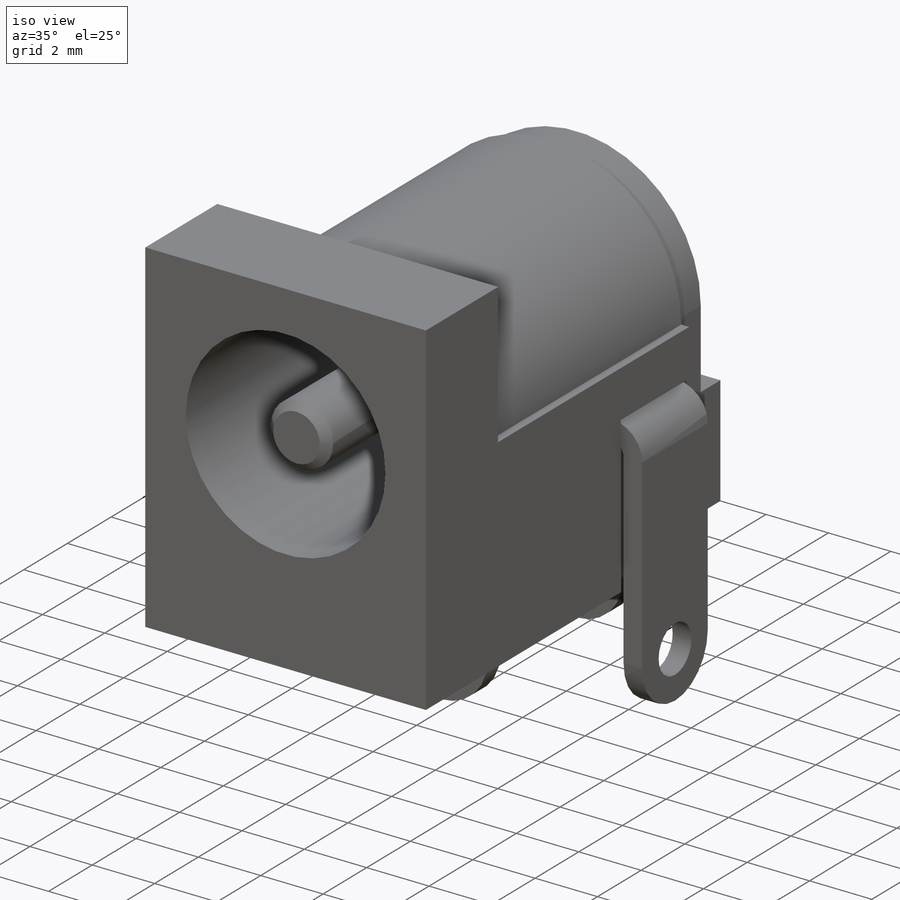
[diagram: iso view]
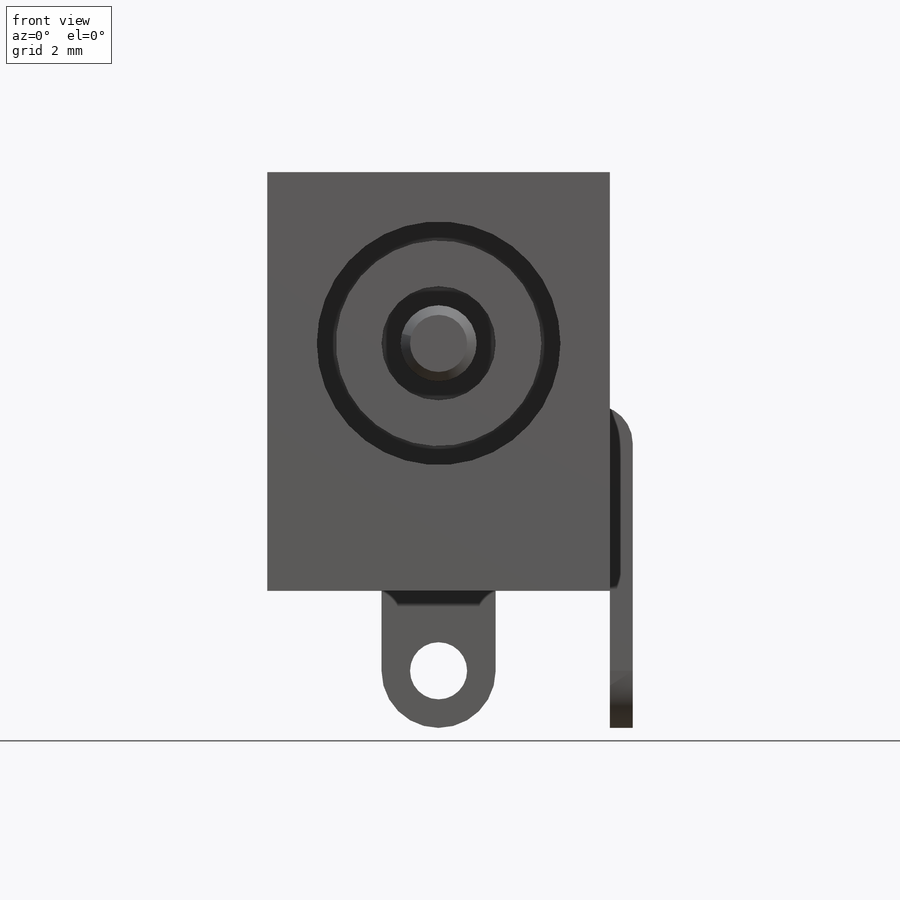
[diagram: front view]
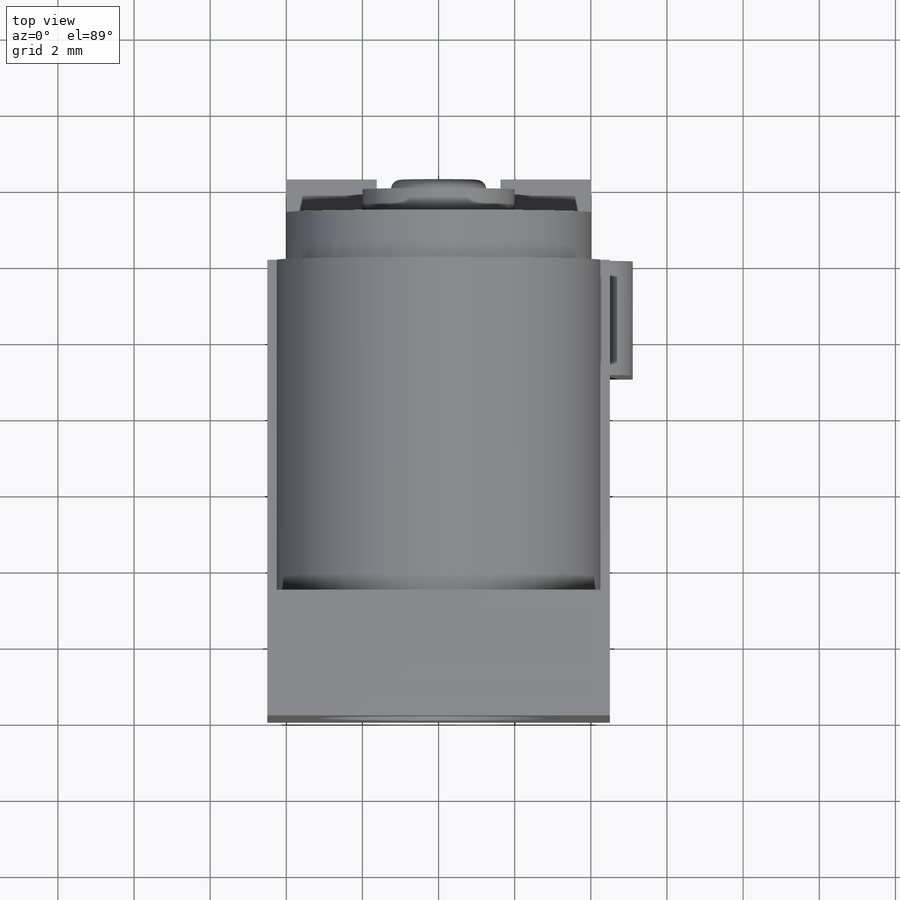
[diagram: top view]
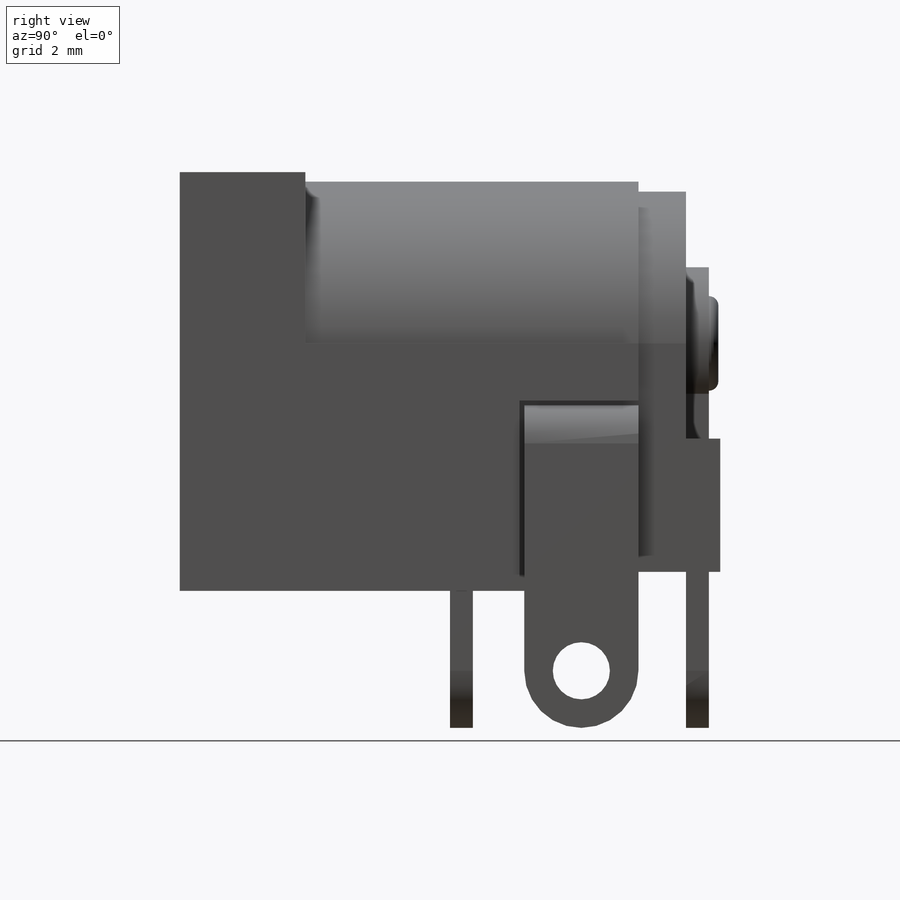
[diagram: right view]
SOLIDWORKS PART (.sldprt)
format: sldprt  version: not decoded by parser v0  size: 809,472 bytes
history: native  units: mm
features: sketch x11, extrude x9, fillet x3, material x1, cut_extrude x1, cut_revolve x1 (+11 scaffold rows collapsed)
feature tree (37):
  scaffold x11  (default folders/planes/origin — collapsed)
  material  "Material <not specified>"
  sketch  "Sketch1"  dims[D1=9.0mm D2=11.0mm]
  extrude  "Boss-Extrude1"  Depth=3.3mm
  sketch  "Sketch9"  dims[c1.D1=0.4mm c1.D2=0.4mm c2.D1=6.5mm c2.D2=0.25mm]
  extrude  "Boss-Extrude5"  Depth=8.75mm
  sketch  "Sketch10"  dims[D1=0.25mm]
  extrude  "Boss-Extrude6"  Depth=13.3mm
  sketch  "Sketch16"  dims[c1.D1=10.8mm c1.D2=5.0mm c2.D1=3.125mm]
  cut_extrude  "Cut-Extrude3"  [1 undecoded]
  sketch  "Sketch11"  dims[D1=3.25mm D2=4.0mm]
  extrude  "Boss-Extrude7"  Depth=14.2mm
  sketch  "Sketch12"  dims[D3=1.5mm D4=2.0mm D1=3.0mm D2=3.6mm]
  extrude  "Boss-Extrude8"  Depth=0.6mm
  sketch  "Sketch19"  dims[D1=2.5mm]
  extrude  "Boss-Extrude13"  Depth=0.25mm
  fillet  "Fillet3"  Radius=0.25mm
  sketch  "Sketch15"  dims[D1=0.0mm]
  extrude  "Boss-Extrude10"  Depth=0.6mm
  sketch  "Sketch17"  dims[D1=0.125mm D2=3.0mm D3=0.6mm]
  extrude  "Boss-Extrude11"  Depth=0.5mm
  sketch  "Sketch18"  dims[D1=1.5mm]
  extrude  "Boss-Extrude12"  Depth=0.6mm
  fillet  "Fillet1"  Radius=1mm
  fillet  "Fillet2"  Radius=0.4mm
  sketch  "Sketch3"  dims[c1.D1=2.7mm c1.D2=1.95mm c1.D3=0.5mm c1.D4=0.6mm c1.D5=0.25mm c1.D6=0.25mm c1.D7=7.0mm c1.D8=0.4mm c1.D9=0.6mm c1.D10=0.8mm c2.D2=0.75mm c2.D1=3.2mm c3.D2=1.0mm c3.D3=0.5mm c3.D4=0.25mm c3.D5=0.25mm c3.D6=3.0mm c3.D7=0.5mm]
  cut_revolve  "Cut-Revolve1"  Angle=360deg
decode coverage: 24 of 25 modeling features carry decoded parameters
note: 1 parameter value undecoded
note: suppression state not decoded; provenance and decode notes live in map.json
